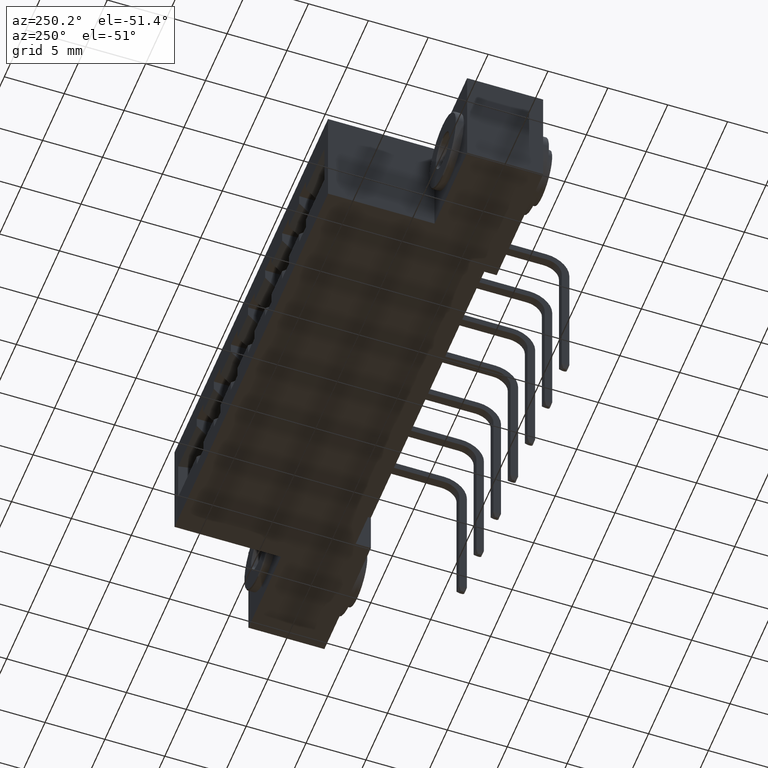
[diagram: clean part render]
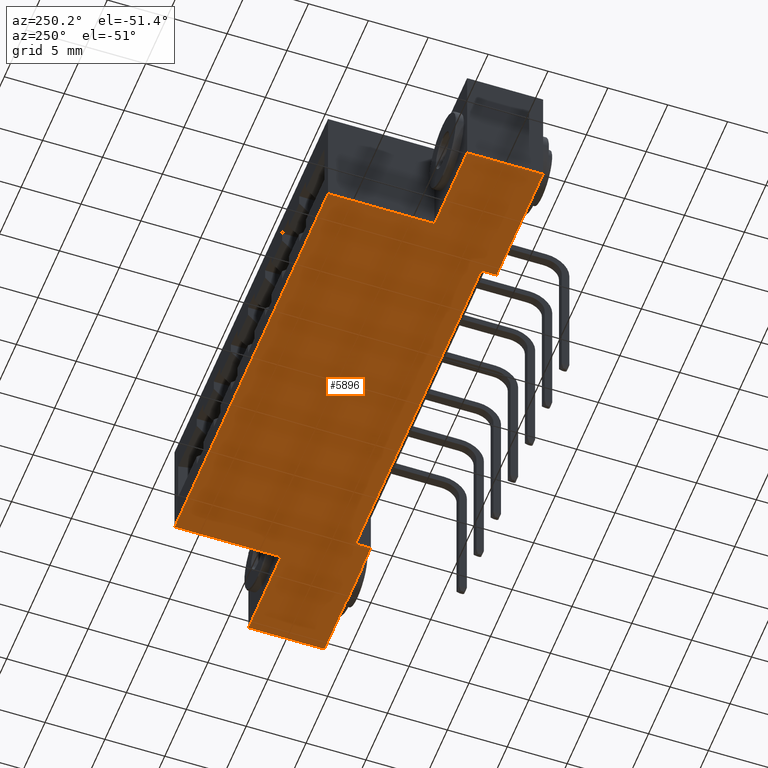
[diagram: same view with one face highlighted and labeled with its STEP entity id]
A machine part, auxiliary view. The second image highlights one B-rep face of the part: STEP entity #5896.
In plain terms, the highlighted planar face has unit normal (-0, 0, 1).
Its self-contained STEP definition (entity closure, byte-faithful):
#12 = VERTEX_POINT ( 'NONE', #6431 ) ;
#126 = CARTESIAN_POINT ( 'NONE',  ( 1.998000000000000000, 0.2500000000000001100, -0.3700000000000000000 ) ) ;
#153 = CARTESIAN_POINT ( 'NONE',  ( 1.700000000000000000, 0.5999999999999999800, -0.3699999999999998800 ) ) ;
#288 = VERTEX_POINT ( 'NONE', #3480 ) ;
#457 = EDGE_CURVE ( 'NONE', #10351, #8253, #7577, .T. ) ;
#482 = CARTESIAN_POINT ( 'NONE',  ( 1.700000000000000000, 0.2500000000000000000, -0.3699999999999998800 ) ) ;
#490 = VERTEX_POINT ( 'NONE', #9159 ) ;
#652 = CARTESIAN_POINT ( 'NONE',  ( 0.4249999999999999900, 0.05000000000000000300, -0.3700000000000000000 ) ) ;
#801 = DIRECTION ( 'NONE',  ( -1.000000000000000000, -0.0000000000000000000, -6.836456440601259400E-017 ) ) ;
#821 = AXIS2_PLACEMENT_3D ( 'NONE', #4326, #10130, #7734 ) ;
#951 = LINE ( 'NONE', #6034, #4345 ) ;
#1032 = DIRECTION ( 'NONE',  ( -1.000000000000000000, -0.0000000000000000000, -6.836456440601259400E-017 ) ) ;
#1209 = EDGE_CURVE ( 'NONE', #10283, #8955, #8041, .T. ) ;
#1257 = VERTEX_POINT ( 'NONE', #7247 ) ;
#1293 = VERTEX_POINT ( 'NONE', #126 ) ;
#1559 = ORIENTED_EDGE ( 'NONE', *, *, #2352, .T. ) ;
#1589 = CARTESIAN_POINT ( 'NONE',  ( 0.0000000000000000000, 0.2500000000000000000, -0.3700000000000001600 ) ) ;
#1605 = VECTOR ( 'NONE', #6353, 39.37007874015748100 ) ;
#1813 = EDGE_CURVE ( 'NONE', #2452, #12, #4475, .T. ) ;
#1951 = EDGE_CURVE ( 'NONE', #10283, #8253, #4869, .T. ) ;
#1990 = EDGE_CURVE ( 'NONE', #12, #2080, #951, .T. ) ;
#2021 = LINE ( 'NONE', #7945, #8733 ) ;
#2040 = CARTESIAN_POINT ( 'NONE',  ( 0.0000000000000000000, 0.5999999999999999800, -0.3700000000000001600 ) ) ;
#2080 = VERTEX_POINT ( 'NONE', #3245 ) ;
#2104 = ORIENTED_EDGE ( 'NONE', *, *, #6749, .F. ) ;
#2150 = DIRECTION ( 'NONE',  ( -0.0000000000000000000, -1.000000000000000000, -0.0000000000000000000 ) ) ;
#2173 = ORIENTED_EDGE ( 'NONE', *, *, #1951, .T. ) ;
#2181 = DIRECTION ( 'NONE',  ( -0.0000000000000000000, -1.000000000000000000, -0.0000000000000000000 ) ) ;
#2201 = ORIENTED_EDGE ( 'NONE', *, *, #6930, .T. ) ;
#2204 = VECTOR ( 'NONE', #1032, 39.37007874015748100 ) ;
#2240 = CARTESIAN_POINT ( 'NONE',  ( 0.0000000000000000000, 0.0000000000000000000, -0.3700000000000001600 ) ) ;
#2352 = EDGE_CURVE ( 'NONE', #8071, #2080, #8023, .T. ) ;
#2452 = VERTEX_POINT ( 'NONE', #652 ) ;
#2633 = CARTESIAN_POINT ( 'NONE',  ( 0.0000000000000000000, 0.0000000000000000000, -0.3700000000000001600 ) ) ;
#2667 = ORIENTED_EDGE ( 'NONE', *, *, #4810, .F. ) ;
#3101 = LINE ( 'NONE', #482, #6021 ) ;
#3245 = CARTESIAN_POINT ( 'NONE',  ( 1.573000000000000200, 0.0000000000000000000, -0.3700000000000000000 ) ) ;
#3326 = CARTESIAN_POINT ( 'NONE',  ( 0.0000000000000000000, 0.5999999999999999800, -0.3700000000000001600 ) ) ;
#3480 = CARTESIAN_POINT ( 'NONE',  ( 0.4249999999999999900, 0.0000000000000000000, -0.3700000000000000000 ) ) ;
#3532 = PLANE ( 'NONE',  #821 ) ;
#3588 = CARTESIAN_POINT ( 'NONE',  ( 0.2980000000000001000, 0.2500000000000000000, -0.3700000000000001600 ) ) ;
#3634 = CARTESIAN_POINT ( 'NONE',  ( 0.2980000000000001000, 0.5999999999999999800, -0.3700000000000001600 ) ) ;
#3917 = CARTESIAN_POINT ( 'NONE',  ( 0.0000000000000000000, 0.2500000000000000000, -0.3700000000000001600 ) ) ;
#3933 = CARTESIAN_POINT ( 'NONE',  ( 0.4249999999999999900, 0.05000000000000000300, -0.3700000000000000000 ) ) ;
#4204 = CARTESIAN_POINT ( 'NONE',  ( 0.4249999999999999900, 0.05000000000000000300, -0.3700000000000000000 ) ) ;
#4326 = CARTESIAN_POINT ( 'NONE',  ( 0.0000000000000000000, 0.5999999999999999800, -0.3700000000000001600 ) ) ;
#4345 = VECTOR ( 'NONE', #2150, 39.37007874015748100 ) ;
#4475 = LINE ( 'NONE', #3933, #5755 ) ;
#4485 = ORIENTED_EDGE ( 'NONE', *, *, #1990, .F. ) ;
#4694 = EDGE_CURVE ( 'NONE', #8955, #490, #5027, .T. ) ;
#4698 = ORIENTED_EDGE ( 'NONE', *, *, #1209, .F. ) ;
#4785 = EDGE_CURVE ( 'NONE', #1293, #8071, #7299, .T. ) ;
#4810 = EDGE_CURVE ( 'NONE', #1257, #10351, #3101, .T. ) ;
#4869 = LINE ( 'NONE', #3588, #9307 ) ;
#5027 = LINE ( 'NONE', #2040, #5639 ) ;
#5562 = DIRECTION ( 'NONE',  ( 1.000000000000000000, 0.0000000000000000000, 0.0000000000000000000 ) ) ;
#5639 = VECTOR ( 'NONE', #9279, 39.37007874015748100 ) ;
#5755 = VECTOR ( 'NONE', #5562, 39.37007874015748100 ) ;
#5769 = VECTOR ( 'NONE', #2181, 39.37007874015748100 ) ;
#5896 = ADVANCED_FACE ( 'NONE', ( #5999 ), #3532, .F. ) ;
#5950 = ORIENTED_EDGE ( 'NONE', *, *, #457, .F. ) ;
#5997 = EDGE_LOOP ( 'NONE', ( #5950, #2667, #2104, #10006, #1559, #4485, #8597, #2201, #10144, #10429, #4698, #2173 ) ) ;
#5999 = FACE_OUTER_BOUND ( 'NONE', #5997, .T. ) ;
#6021 = VECTOR ( 'NONE', #10155, 39.37007874015748100 ) ;
#6034 = CARTESIAN_POINT ( 'NONE',  ( 1.573000000000000200, 0.05000000000000000300, -0.3700000000000000000 ) ) ;
#6353 = DIRECTION ( 'NONE',  ( -1.000000000000000000, -0.0000000000000000000, -0.0000000000000000000 ) ) ;
#6394 = DIRECTION ( 'NONE',  ( -1.000000000000000000, 0.0000000000000000000, 4.583637573262184100E-016 ) ) ;
#6431 = CARTESIAN_POINT ( 'NONE',  ( 1.573000000000000200, 0.05000000000000000300, -0.3700000000000000000 ) ) ;
#6644 = DIRECTION ( 'NONE',  ( -0.0000000000000000000, -1.000000000000000000, -0.0000000000000000000 ) ) ;
#6706 = VECTOR ( 'NONE', #6644, 39.37007874015748100 ) ;
#6749 = EDGE_CURVE ( 'NONE', #1293, #1257, #2021, .T. ) ;
#6793 = DIRECTION ( 'NONE',  ( -0.0000000000000000000, 1.000000000000000000, -0.0000000000000000000 ) ) ;
#6930 = EDGE_CURVE ( 'NONE', #2452, #288, #7952, .T. ) ;
#7032 = CARTESIAN_POINT ( 'NONE',  ( 1.998000000000000000, 0.5999999999999999800, -0.3700000000000000000 ) ) ;
#7124 = LINE ( 'NONE', #2240, #9670 ) ;
#7247 = CARTESIAN_POINT ( 'NONE',  ( 1.700000000000000000, 0.2500000000000000000, -0.3699999999999998800 ) ) ;
#7299 = LINE ( 'NONE', #7032, #5769 ) ;
#7577 = LINE ( 'NONE', #3326, #10338 ) ;
#7734 = DIRECTION ( 'NONE',  ( 1.000000000000000000, 0.0000000000000000000, 6.836456440601260700E-017 ) ) ;
#7945 = CARTESIAN_POINT ( 'NONE',  ( 1.998000000000000000, 0.2500000000000000000, -0.3700000000000000000 ) ) ;
#7952 = LINE ( 'NONE', #4204, #6706 ) ;
#7995 = CARTESIAN_POINT ( 'NONE',  ( 0.2980000000000001000, 0.2500000000000000000, -0.3700000000000001600 ) ) ;
#8023 = LINE ( 'NONE', #2633, #2204 ) ;
#8041 = LINE ( 'NONE', #1589, #1605 ) ;
#8071 = VERTEX_POINT ( 'NONE', #9153 ) ;
#8253 = VERTEX_POINT ( 'NONE', #3634 ) ;
#8597 = ORIENTED_EDGE ( 'NONE', *, *, #1813, .F. ) ;
#8733 = VECTOR ( 'NONE', #6394, 39.37007874015748100 ) ;
#8955 = VERTEX_POINT ( 'NONE', #3917 ) ;
#9153 = CARTESIAN_POINT ( 'NONE',  ( 1.998000000000000000, 0.0000000000000000000, -0.3700000000000000000 ) ) ;
#9159 = CARTESIAN_POINT ( 'NONE',  ( 0.0000000000000000000, 0.0000000000000000000, -0.3700000000000001600 ) ) ;
#9279 = DIRECTION ( 'NONE',  ( -0.0000000000000000000, -1.000000000000000000, -0.0000000000000000000 ) ) ;
#9283 = DIRECTION ( 'NONE',  ( -1.000000000000000000, -0.0000000000000000000, -6.836456440601259400E-017 ) ) ;
#9307 = VECTOR ( 'NONE', #6793, 39.37007874015748100 ) ;
#9670 = VECTOR ( 'NONE', #801, 39.37007874015748100 ) ;
#10006 = ORIENTED_EDGE ( 'NONE', *, *, #4785, .T. ) ;
#10130 = DIRECTION ( 'NONE',  ( -6.836456440601260700E-017, 0.0000000000000000000, 1.000000000000000000 ) ) ;
#10144 = ORIENTED_EDGE ( 'NONE', *, *, #10397, .T. ) ;
#10155 = DIRECTION ( 'NONE',  ( -0.0000000000000000000, 1.000000000000000000, -0.0000000000000000000 ) ) ;
#10283 = VERTEX_POINT ( 'NONE', #7995 ) ;
#10338 = VECTOR ( 'NONE', #9283, 39.37007874015748100 ) ;
#10351 = VERTEX_POINT ( 'NONE', #153 ) ;
#10397 = EDGE_CURVE ( 'NONE', #288, #490, #7124, .T. ) ;
#10429 = ORIENTED_EDGE ( 'NONE', *, *, #4694, .F. ) ;